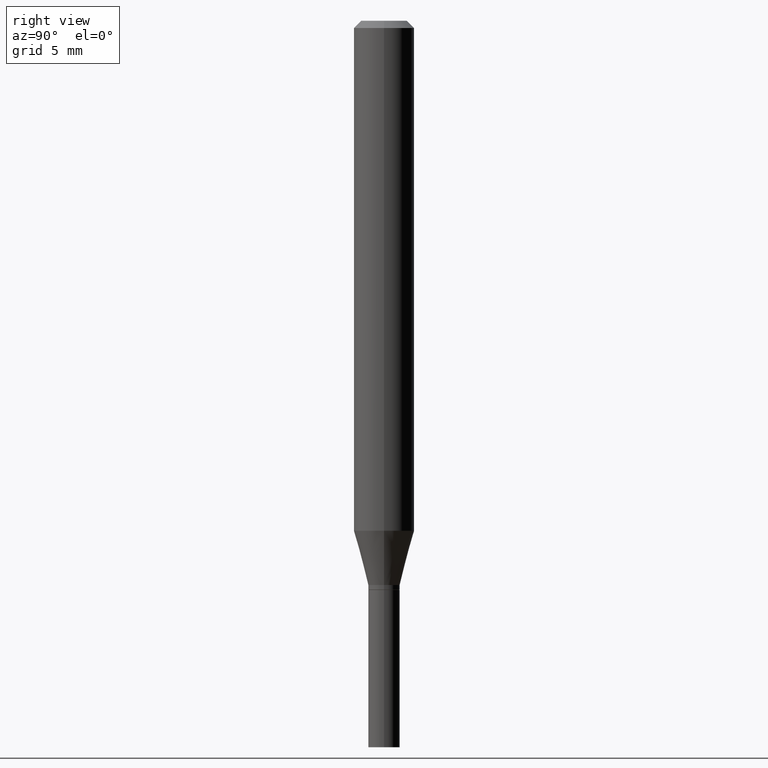
[diagram: clean part render]
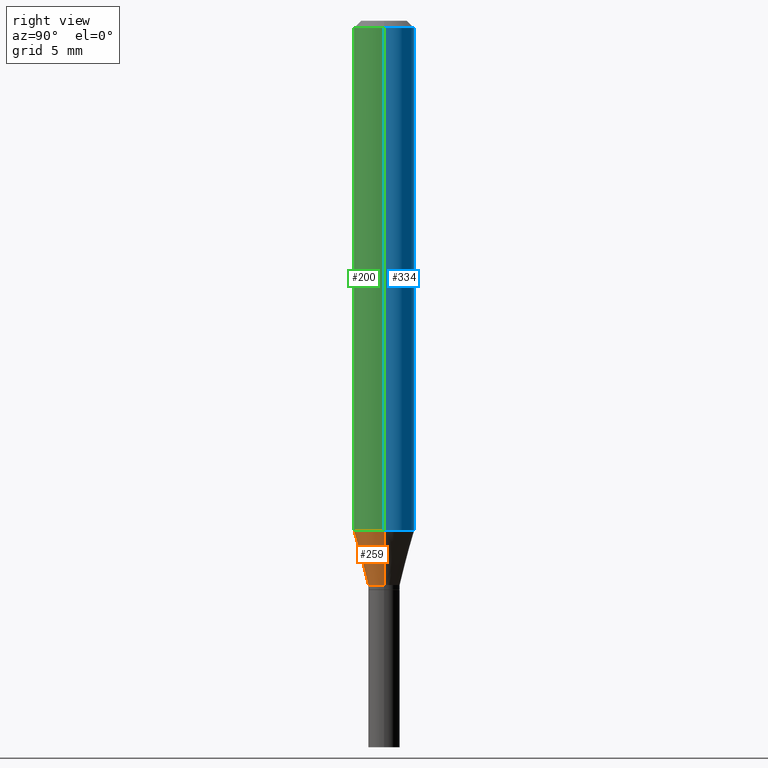
[diagram: same view with three faces highlighted in distinct colors, each labeled with its STEP entity id]
A machine part, right view with three faces highlighted in distinct colors.
Their STEP definitions:

[orange] entity #259 — the highlighted conical surface has half-angle 15 deg.
#5 = AXIS2_PLACEMENT_3D ( 'NONE', #285, #216, #103 ) ;
#10 = ORIENTED_EDGE ( 'NONE', *, *, #178, .F. ) ;
#25 = FACE_OUTER_BOUND ( 'NONE', #407, .T. ) ;
#52 = CIRCLE ( 'NONE', #156, 0.03250000000000018846 ) ;
#72 = CARTESIAN_POINT ( 'NONE',  ( -0.06250000000000000000, -3.232574977394969361E-15, -1.053038475772934746 ) ) ;
#75 = CARTESIAN_POINT ( 'NONE',  ( 2.575172744215455039E-29, -3.676664187245031977E-15, -1.053038475772934746 ) ) ;
#85 = VERTEX_POINT ( 'NONE', #239 ) ;
#103 = DIRECTION ( 'NONE',  ( 1.000000000000000000, -6.982962677686261977E-15, 0.000000000000000000 ) ) ;
#117 = DIRECTION ( 'NONE',  ( 0.2588190451025216277, 1.565188264969619995E-15, 0.9659258262890679791 ) ) ;
#125 = CONICAL_SURFACE ( 'NONE', #5, 0.03250000000000018846, 0.2617993877991502960 ) ;
#141 = VECTOR ( 'NONE', #117, 39.37007874015748143 ) ;
#156 = AXIS2_PLACEMENT_3D ( 'NONE', #353, #398, #323 ) ;
#170 = CARTESIAN_POINT ( 'NONE',  ( 0.06250000000000000000, -4.113099354600423647E-15, -1.053038475772934746 ) ) ;
#172 = AXIS2_PLACEMENT_3D ( 'NONE', #75, #173, #213 ) ;
#173 = DIRECTION ( 'NONE',  ( -2.445468806185136597E-29, 3.491481338843145583E-15, 1.000000000000000000 ) ) ;
#178 = EDGE_CURVE ( 'NONE', #85, #308, #386, .T. ) ;
#179 = VERTEX_POINT ( 'NONE', #170 ) ;
#189 = ORIENTED_EDGE ( 'NONE', *, *, #303, .F. ) ;
#212 = EDGE_CURVE ( 'NONE', #85, #399, #52, .T. ) ;
#213 = DIRECTION ( 'NONE',  ( 1.000000000000000000, -6.982962677686270655E-15, 0.000000000000000000 ) ) ;
#216 = DIRECTION ( 'NONE',  ( -2.445468806185136597E-29, 3.491481338843145583E-15, 1.000000000000000000 ) ) ;
#219 = LINE ( 'NONE', #466, #141 ) ;
#239 = CARTESIAN_POINT ( 'NONE',  ( -0.03250000000000018846, -3.534612174012599828E-15, -1.165000000000000036 ) ) ;
#259 = ADVANCED_FACE ( 'NONE', ( #25 ), #125, .T. ) ;
#281 = DIRECTION ( 'NONE',  ( -0.2588190451025216277, 5.211531920934551831E-15, 0.9659258262890679791 ) ) ;
#285 = CARTESIAN_POINT ( 'NONE',  ( 2.848971159205684292E-29, -4.067575759752264243E-15, -1.165000000000000036 ) ) ;
#303 = EDGE_CURVE ( 'NONE', #308, #179, #380, .T. ) ;
#308 = VERTEX_POINT ( 'NONE', #72 ) ;
#323 = DIRECTION ( 'NONE',  ( 1.000000000000000000, -6.982962677686261977E-15, 0.000000000000000000 ) ) ;
#353 = CARTESIAN_POINT ( 'NONE',  ( 2.848971159205684292E-29, -4.067575759752264243E-15, -1.165000000000000036 ) ) ;
#354 = VECTOR ( 'NONE', #281, 39.37007874015748143 ) ;
#359 = ORIENTED_EDGE ( 'NONE', *, *, #212, .T. ) ;
#380 = CIRCLE ( 'NONE', #172, 0.06250000000000000000 ) ;
#386 = LINE ( 'NONE', #455, #354 ) ;
#390 = ORIENTED_EDGE ( 'NONE', *, *, #439, .T. ) ;
#398 = DIRECTION ( 'NONE',  ( -2.445468806185136597E-29, 3.491481338843145583E-15, 1.000000000000000000 ) ) ;
#399 = VERTEX_POINT ( 'NONE', #400 ) ;
#400 = CARTESIAN_POINT ( 'NONE',  ( 0.03250000000000018846, -4.294522046777069173E-15, -1.165000000000000036 ) ) ;
#407 = EDGE_LOOP ( 'NONE', ( #10, #359, #390, #189 ) ) ;
#439 = EDGE_CURVE ( 'NONE', #399, #179, #219, .T. ) ;
#455 = CARTESIAN_POINT ( 'NONE',  ( -0.03250000000000018846, -3.836649370630230294E-15, -1.165000000000000036 ) ) ;
#466 = CARTESIAN_POINT ( 'NONE',  ( 0.03250000000000018846, -4.294522046777069173E-15, -1.165000000000000036 ) ) ;

[blue] entity #334 — the highlighted cylindrical surface (edge-blend (fillet) strip) has radius 1.5875 mm, axis along (-0, 0, 1).
#13 = DIRECTION ( 'NONE',  ( 1.000000000000000000, -6.982962677686266711E-15, 0.000000000000000000 ) ) ;
#16 = DIRECTION ( 'NONE',  ( 1.000000000000000000, -6.982962677686270655E-15, 0.000000000000000000 ) ) ;
#31 = EDGE_CURVE ( 'NONE', #38, #183, #348, .T. ) ;
#38 = VERTEX_POINT ( 'NONE', #107 ) ;
#49 = EDGE_CURVE ( 'NONE', #179, #308, #289, .T. ) ;
#50 = ORIENTED_EDGE ( 'NONE', *, *, #111, .T. ) ;
#71 = CYLINDRICAL_SURFACE ( 'NONE', #387, 0.06250000000000000000 ) ;
#72 = CARTESIAN_POINT ( 'NONE',  ( -0.06250000000000000000, -3.232574977394969361E-15, -1.053038475772934746 ) ) ;
#81 = CARTESIAN_POINT ( 'NONE',  ( 3.668203209277705088E-31, -5.237222008264718399E-17, -0.01499999999999999944 ) ) ;
#89 = LINE ( 'NONE', #204, #305 ) ;
#102 = AXIS2_PLACEMENT_3D ( 'NONE', #411, #163, #16 ) ;
#107 = CARTESIAN_POINT ( 'NONE',  ( 0.06250000000000000000, -4.888073874380388472E-16, -0.01499999999999999944 ) ) ;
#108 = VECTOR ( 'NONE', #430, 39.37007874015748143 ) ;
#111 = EDGE_CURVE ( 'NONE', #308, #183, #89, .T. ) ;
#142 = CARTESIAN_POINT ( 'NONE',  ( 0.000000000000000000, 0.000000000000000000, 0.000000000000000000 ) ) ;
#163 = DIRECTION ( 'NONE',  ( -2.445468806185136597E-29, 3.491481338843145583E-15, 1.000000000000000000 ) ) ;
#170 = CARTESIAN_POINT ( 'NONE',  ( 0.06250000000000000000, -4.113099354600423647E-15, -1.053038475772934746 ) ) ;
#176 = LINE ( 'NONE', #244, #108 ) ;
#179 = VERTEX_POINT ( 'NONE', #170 ) ;
#183 = VERTEX_POINT ( 'NONE', #456 ) ;
#204 = CARTESIAN_POINT ( 'NONE',  ( -0.06250000000000000000, 4.440892098500626162E-16, -3.074334431409316114E-30 ) ) ;
#210 = DIRECTION ( 'NONE',  ( -2.445468806185136597E-29, 3.491481338843145583E-15, 1.000000000000000000 ) ) ;
#223 = DIRECTION ( 'NONE',  ( -2.445468806185136597E-29, 3.491481338843145583E-15, 1.000000000000000000 ) ) ;
#244 = CARTESIAN_POINT ( 'NONE',  ( 0.06250000000000000000, -4.364351673553916694E-16, 3.047610484872459871E-30 ) ) ;
#245 = ORIENTED_EDGE ( 'NONE', *, *, #49, .T. ) ;
#289 = CIRCLE ( 'NONE', #102, 0.06250000000000000000 ) ;
#293 = EDGE_CURVE ( 'NONE', #179, #38, #176, .T. ) ;
#305 = VECTOR ( 'NONE', #388, 39.37007874015748143 ) ;
#308 = VERTEX_POINT ( 'NONE', #72 ) ;
#318 = DIRECTION ( 'NONE',  ( 1.000000000000000000, -6.982962677686266711E-15, 4.876176775795935793E-29 ) ) ;
#332 = AXIS2_PLACEMENT_3D ( 'NONE', #81, #223, #13 ) ;
#334 = ADVANCED_FACE ( 'NONE', ( #424 ), #71, .T. ) ;
#348 = CIRCLE ( 'NONE', #332, 0.06250000000000000000 ) ;
#371 = EDGE_LOOP ( 'NONE', ( #245, #50, #425, #405 ) ) ;
#387 = AXIS2_PLACEMENT_3D ( 'NONE', #142, #210, #318 ) ;
#388 = DIRECTION ( 'NONE',  ( -2.445468806185136877E-29, 3.491481338843145188E-15, 1.000000000000000000 ) ) ;
#405 = ORIENTED_EDGE ( 'NONE', *, *, #293, .F. ) ;
#411 = CARTESIAN_POINT ( 'NONE',  ( 2.575172744215455039E-29, -3.676664187245031977E-15, -1.053038475772934746 ) ) ;
#424 = FACE_OUTER_BOUND ( 'NONE', #371, .T. ) ;
#425 = ORIENTED_EDGE ( 'NONE', *, *, #31, .F. ) ;
#430 = DIRECTION ( 'NONE',  ( -2.445468806185136877E-29, 3.491481338843145188E-15, 1.000000000000000000 ) ) ;
#456 = CARTESIAN_POINT ( 'NONE',  ( -0.06250000000000000000, -1.420428993813776912E-15, -0.01499999999999999944 ) ) ;

[green] entity #200 — the highlighted cylindrical surface (edge-blend (fillet) strip) has radius 1.5875 mm, axis along (-0, 0, 1).
#32 = DIRECTION ( 'NONE',  ( 1.000000000000000000, -6.982962677686266711E-15, 4.876176775795935793E-29 ) ) ;
#38 = VERTEX_POINT ( 'NONE', #107 ) ;
#65 = EDGE_LOOP ( 'NONE', ( #438, #110, #261, #361 ) ) ;
#69 = CIRCLE ( 'NONE', #445, 0.06250000000000000000 ) ;
#72 = CARTESIAN_POINT ( 'NONE',  ( -0.06250000000000000000, -3.232574977394969361E-15, -1.053038475772934746 ) ) ;
#75 = CARTESIAN_POINT ( 'NONE',  ( 2.575172744215455039E-29, -3.676664187245031977E-15, -1.053038475772934746 ) ) ;
#89 = LINE ( 'NONE', #204, #305 ) ;
#99 = FACE_OUTER_BOUND ( 'NONE', #65, .T. ) ;
#107 = CARTESIAN_POINT ( 'NONE',  ( 0.06250000000000000000, -4.888073874380388472E-16, -0.01499999999999999944 ) ) ;
#108 = VECTOR ( 'NONE', #430, 39.37007874015748143 ) ;
#110 = ORIENTED_EDGE ( 'NONE', *, *, #303, .T. ) ;
#111 = EDGE_CURVE ( 'NONE', #308, #183, #89, .T. ) ;
#134 = DIRECTION ( 'NONE',  ( 1.000000000000000000, -6.982962677686266711E-15, 0.000000000000000000 ) ) ;
#170 = CARTESIAN_POINT ( 'NONE',  ( 0.06250000000000000000, -4.113099354600423647E-15, -1.053038475772934746 ) ) ;
#172 = AXIS2_PLACEMENT_3D ( 'NONE', #75, #173, #213 ) ;
#173 = DIRECTION ( 'NONE',  ( -2.445468806185136597E-29, 3.491481338843145583E-15, 1.000000000000000000 ) ) ;
#176 = LINE ( 'NONE', #244, #108 ) ;
#179 = VERTEX_POINT ( 'NONE', #170 ) ;
#183 = VERTEX_POINT ( 'NONE', #456 ) ;
#200 = ADVANCED_FACE ( 'NONE', ( #99 ), #458, .T. ) ;
#204 = CARTESIAN_POINT ( 'NONE',  ( -0.06250000000000000000, 4.440892098500626162E-16, -3.074334431409316114E-30 ) ) ;
#207 = AXIS2_PLACEMENT_3D ( 'NONE', #246, #391, #32 ) ;
#213 = DIRECTION ( 'NONE',  ( 1.000000000000000000, -6.982962677686270655E-15, 0.000000000000000000 ) ) ;
#244 = CARTESIAN_POINT ( 'NONE',  ( 0.06250000000000000000, -4.364351673553916694E-16, 3.047610484872459871E-30 ) ) ;
#246 = CARTESIAN_POINT ( 'NONE',  ( 0.000000000000000000, 0.000000000000000000, 0.000000000000000000 ) ) ;
#261 = ORIENTED_EDGE ( 'NONE', *, *, #293, .T. ) ;
#278 = EDGE_CURVE ( 'NONE', #183, #38, #69, .T. ) ;
#293 = EDGE_CURVE ( 'NONE', #179, #38, #176, .T. ) ;
#303 = EDGE_CURVE ( 'NONE', #308, #179, #380, .T. ) ;
#305 = VECTOR ( 'NONE', #388, 39.37007874015748143 ) ;
#308 = VERTEX_POINT ( 'NONE', #72 ) ;
#321 = CARTESIAN_POINT ( 'NONE',  ( 3.668203209277705088E-31, -5.237222008264718399E-17, -0.01499999999999999944 ) ) ;
#361 = ORIENTED_EDGE ( 'NONE', *, *, #278, .F. ) ;
#380 = CIRCLE ( 'NONE', #172, 0.06250000000000000000 ) ;
#388 = DIRECTION ( 'NONE',  ( -2.445468806185136877E-29, 3.491481338843145188E-15, 1.000000000000000000 ) ) ;
#391 = DIRECTION ( 'NONE',  ( -2.445468806185136597E-29, 3.491481338843145583E-15, 1.000000000000000000 ) ) ;
#430 = DIRECTION ( 'NONE',  ( -2.445468806185136877E-29, 3.491481338843145188E-15, 1.000000000000000000 ) ) ;
#438 = ORIENTED_EDGE ( 'NONE', *, *, #111, .F. ) ;
#445 = AXIS2_PLACEMENT_3D ( 'NONE', #321, #461, #134 ) ;
#456 = CARTESIAN_POINT ( 'NONE',  ( -0.06250000000000000000, -1.420428993813776912E-15, -0.01499999999999999944 ) ) ;
#458 = CYLINDRICAL_SURFACE ( 'NONE', #207, 0.06250000000000000000 ) ;
#461 = DIRECTION ( 'NONE',  ( -2.445468806185136597E-29, 3.491481338843145583E-15, 1.000000000000000000 ) ) ;